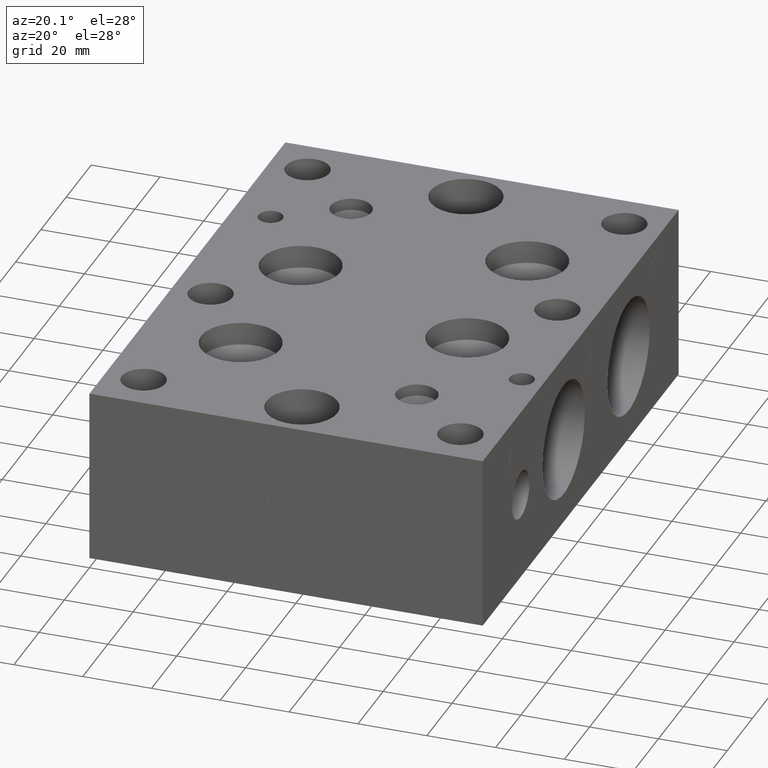
[diagram: clean part render]
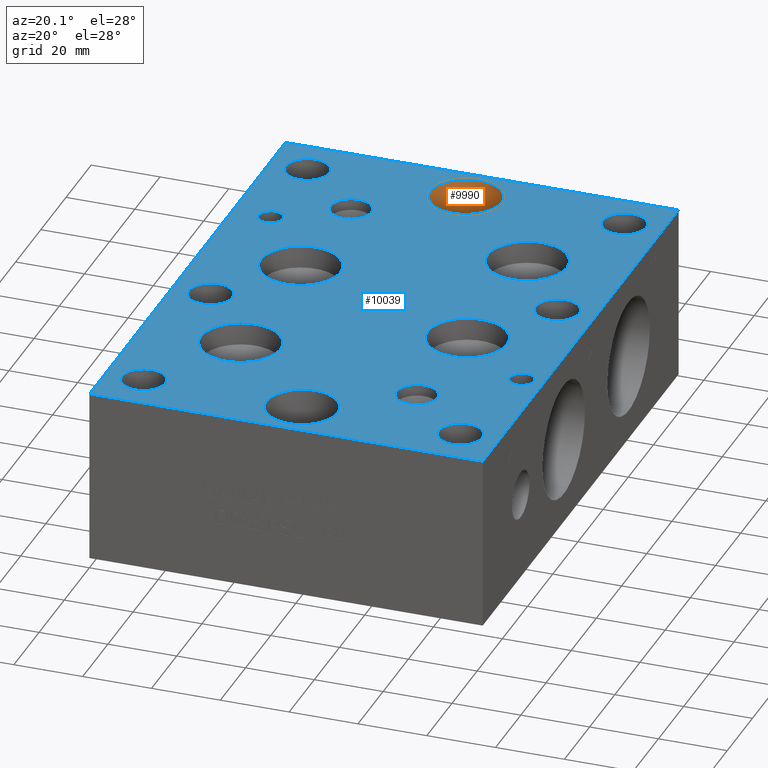
[diagram: same view with the hole feature highlighted: cylindrical wall and planar end face, labeled with their STEP entity ids]
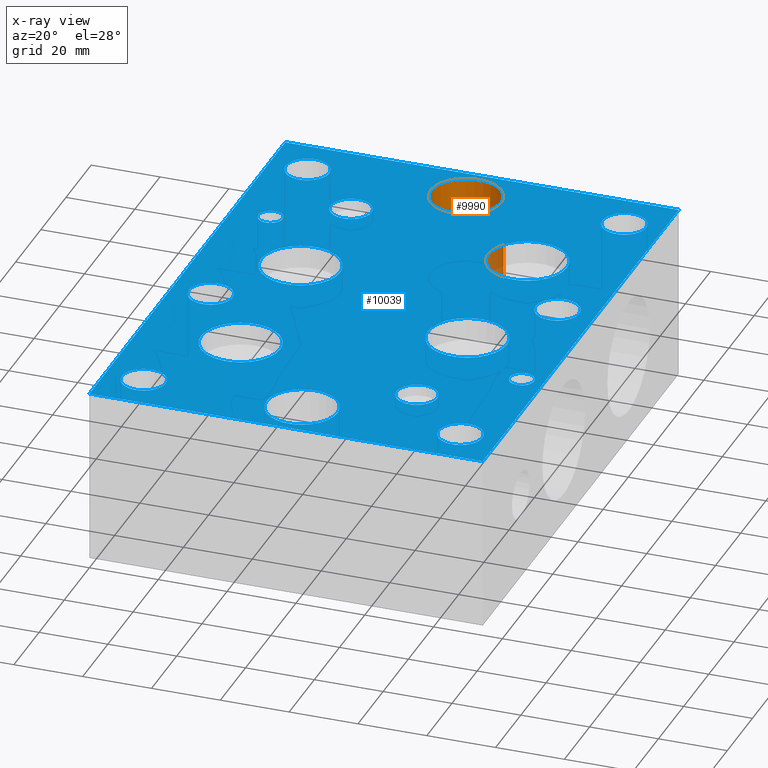
[diagram: x-ray of the same camera — body ghosted, the hole faces saturated]
A machine part, auxiliary view. The highlighted faces form one hole feature of diameter 20.6248 mm: the cylindrical wall (entity #9990, orange) and its adjacent planar end face (entity #10039, blue) — they share a circular edge in the B-rep.
The next image is the same camera in x-ray (body ghosted, the hole faces saturated) — the bore reads through the body.
Wall:
#26=CYLINDRICAL_SURFACE('',#10409,10.3124);
#112=CIRCLE('',#10406,10.3124);
#113=CIRCLE('',#10407,10.3124);
#115=CIRCLE('',#10410,10.3124);
#116=CIRCLE('',#10411,10.3124);
#1041=FACE_OUTER_BOUND('',#1606,.T.);
#1606=EDGE_LOOP('',(#8688,#8689,#8690,#8691,#8692,#8693));
#2590=LINE('',#17000,#3538);
#3538=VECTOR('',#12167,10.3124);
#4724=VERTEX_POINT('',#16989);
#4725=VERTEX_POINT('',#16990);
#4727=VERTEX_POINT('',#16996);
#4728=VERTEX_POINT('',#16997);
#6076=EDGE_CURVE('',#4724,#4725,#112,.T.);
#6077=EDGE_CURVE('',#4725,#4724,#113,.T.);
#6079=EDGE_CURVE('',#4727,#4728,#115,.T.);
#6080=EDGE_CURVE('',#4728,#4727,#116,.T.);
#6081=EDGE_CURVE('',#4728,#4725,#2590,.T.);
#8688=ORIENTED_EDGE('',*,*,#6079,.F.);
#8689=ORIENTED_EDGE('',*,*,#6080,.F.);
#8690=ORIENTED_EDGE('',*,*,#6081,.T.);
#8691=ORIENTED_EDGE('',*,*,#6076,.F.);
#8692=ORIENTED_EDGE('',*,*,#6077,.F.);
#8693=ORIENTED_EDGE('',*,*,#6081,.F.);
#9990=ADVANCED_FACE('',(#1041),#26,.F.);
#10406=AXIS2_PLACEMENT_3D('',#16991,#12155,#12156);
#10407=AXIS2_PLACEMENT_3D('',#16992,#12157,#12158);
#10409=AXIS2_PLACEMENT_3D('',#16995,#12161,#12162);
#10410=AXIS2_PLACEMENT_3D('',#16998,#12163,#12164);
#10411=AXIS2_PLACEMENT_3D('',#16999,#12165,#12166);
#12155=DIRECTION('center_axis',(0.,0.,1.));
#12156=DIRECTION('ref_axis',(1.,0.,0.));
#12157=DIRECTION('center_axis',(0.,0.,1.));
#12158=DIRECTION('ref_axis',(1.,0.,0.));
#12161=DIRECTION('center_axis',(0.,0.,1.));
#12162=DIRECTION('ref_axis',(1.,0.,0.));
#12163=DIRECTION('center_axis',(0.,0.,-1.));
#12164=DIRECTION('ref_axis',(1.,0.,0.));
#12165=DIRECTION('center_axis',(0.,0.,-1.));
#12166=DIRECTION('ref_axis',(1.,0.,0.));
#12167=DIRECTION('',(0.,0.,-1.));
#16989=CARTESIAN_POINT('',(67.4624,142.875,25.4));
#16990=CARTESIAN_POINT('',(46.8376,142.875,25.4));
#16991=CARTESIAN_POINT('Origin',(57.15,142.875,25.4));
#16992=CARTESIAN_POINT('Origin',(57.15,142.875,25.4));
#16995=CARTESIAN_POINT('Origin',(57.15,142.875,38.1));
#16996=CARTESIAN_POINT('',(67.4624,142.875,50.8));
#16997=CARTESIAN_POINT('',(46.8376,142.875,50.8));
#16998=CARTESIAN_POINT('Origin',(57.15,142.875,50.8));
#16999=CARTESIAN_POINT('Origin',(57.15,142.875,50.8));
#17000=CARTESIAN_POINT('',(46.8376,142.875,38.1));
End face:
#115=CIRCLE('',#10410,10.3124);
#116=CIRCLE('',#10411,10.3124);
#121=CIRCLE('',#10419,10.3124);
#122=CIRCLE('',#10420,10.3124);
#126=CIRCLE('',#10427,5.9436);
#127=CIRCLE('',#10428,5.9436);
#130=CIRCLE('',#10433,5.9436);
#131=CIRCLE('',#10434,5.9436);
#134=CIRCLE('',#10439,11.50874);
#135=CIRCLE('',#10440,11.50874);
#138=CIRCLE('',#10445,11.5062);
#139=CIRCLE('',#10446,11.5062);
#142=CIRCLE('',#10451,11.5062);
#143=CIRCLE('',#10452,11.5062);
#146=CIRCLE('',#10457,11.5062);
#147=CIRCLE('',#10458,11.5062);
#150=CIRCLE('',#10463,3.5687);
#151=CIRCLE('',#10464,3.5687);
#154=CIRCLE('',#10469,3.5687);
#155=CIRCLE('',#10470,3.5687);
#161=CIRCLE('',#10479,6.35);
#162=CIRCLE('',#10480,6.35);
#168=CIRCLE('',#10490,6.35);
#169=CIRCLE('',#10491,6.35);
#175=CIRCLE('',#10501,6.35);
#176=CIRCLE('',#10502,6.35);
#182=CIRCLE('',#10512,6.35);
#183=CIRCLE('',#10513,6.35);
#189=CIRCLE('',#10523,6.35);
#190=CIRCLE('',#10524,6.35);
#196=CIRCLE('',#10534,6.35);
#197=CIRCLE('',#10535,6.35);
#259=FACE_BOUND('',#1663,.T.);
#260=FACE_BOUND('',#1664,.T.);
#261=FACE_BOUND('',#1665,.T.);
#262=FACE_BOUND('',#1666,.T.);
#263=FACE_BOUND('',#1667,.T.);
#264=FACE_BOUND('',#1668,.T.);
#265=FACE_BOUND('',#1669,.T.);
#266=FACE_BOUND('',#1670,.T.);
#267=FACE_BOUND('',#1671,.T.);
#268=FACE_BOUND('',#1672,.T.);
#269=FACE_BOUND('',#1673,.T.);
#270=FACE_BOUND('',#1674,.T.);
#271=FACE_BOUND('',#1675,.T.);
#272=FACE_BOUND('',#1676,.T.);
#273=FACE_BOUND('',#1677,.T.);
#274=FACE_BOUND('',#1678,.T.);
#579=PLANE('',#10541);
#1090=FACE_OUTER_BOUND('',#1662,.T.);
#1662=EDGE_LOOP('',(#8916,#8917,#8918,#8919));
#1663=EDGE_LOOP('',(#8920,#8921));
#1664=EDGE_LOOP('',(#8922,#8923));
#1665=EDGE_LOOP('',(#8924,#8925));
#1666=EDGE_LOOP('',(#8926,#8927));
#1667=EDGE_LOOP('',(#8928,#8929));
#1668=EDGE_LOOP('',(#8930,#8931));
#1669=EDGE_LOOP('',(#8932,#8933));
#1670=EDGE_LOOP('',(#8934,#8935));
#1671=EDGE_LOOP('',(#8936,#8937));
#1672=EDGE_LOOP('',(#8938,#8939));
#1673=EDGE_LOOP('',(#8940,#8941));
#1674=EDGE_LOOP('',(#8942,#8943));
#1675=EDGE_LOOP('',(#8944,#8945));
#1676=EDGE_LOOP('',(#8946,#8947));
#1677=EDGE_LOOP('',(#8948,#8949));
#1678=EDGE_LOOP('',(#8950,#8951));
#1991=LINE('',#15159,#2939);
#2431=LINE('',#16331,#3379);
#2501=LINE('',#16724,#3449);
#2629=LINE('',#17261,#3577);
#2939=VECTOR('',#11002,10.);
#3379=VECTOR('',#11766,10.);
#3449=VECTOR('',#11890,10.);
#3577=VECTOR('',#12460,10.);
#4248=VERTEX_POINT('',#15156);
#4249=VERTEX_POINT('',#15158);
#4563=VERTEX_POINT('',#16329);
#4635=VERTEX_POINT('',#16723);
#4727=VERTEX_POINT('',#16996);
#4728=VERTEX_POINT('',#16997);
#4733=VERTEX_POINT('',#17013);
#4734=VERTEX_POINT('',#17014);
#4739=VERTEX_POINT('',#17030);
#4740=VERTEX_POINT('',#17031);
#4744=VERTEX_POINT('',#17043);
#4745=VERTEX_POINT('',#17044);
#4749=VERTEX_POINT('',#17056);
#4750=VERTEX_POINT('',#17057);
#4754=VERTEX_POINT('',#17069);
#4755=VERTEX_POINT('',#17070);
#4759=VERTEX_POINT('',#17082);
#4760=VERTEX_POINT('',#17083);
#4764=VERTEX_POINT('',#17095);
#4765=VERTEX_POINT('',#17096);
#4769=VERTEX_POINT('',#17108);
#4770=VERTEX_POINT('',#17109);
#4774=VERTEX_POINT('',#17121);
#4775=VERTEX_POINT('',#17122);
#4782=VERTEX_POINT('',#17141);
#4783=VERTEX_POINT('',#17142);
#4790=VERTEX_POINT('',#17163);
#4791=VERTEX_POINT('',#17164);
#4798=VERTEX_POINT('',#17185);
#4799=VERTEX_POINT('',#17186);
#4806=VERTEX_POINT('',#17207);
#4807=VERTEX_POINT('',#17208);
#4814=VERTEX_POINT('',#17229);
#4815=VERTEX_POINT('',#17230);
#4822=VERTEX_POINT('',#17251);
#4823=VERTEX_POINT('',#17252);
#5375=EDGE_CURVE('',#4249,#4248,#1991,.T.);
#5847=EDGE_CURVE('',#4248,#4563,#2431,.T.);
#5951=EDGE_CURVE('',#4635,#4249,#2501,.T.);
#6079=EDGE_CURVE('',#4727,#4728,#115,.T.);
#6080=EDGE_CURVE('',#4728,#4727,#116,.T.);
#6087=EDGE_CURVE('',#4733,#4734,#121,.T.);
#6088=EDGE_CURVE('',#4734,#4733,#122,.T.);
#6095=EDGE_CURVE('',#4739,#4740,#126,.T.);
#6096=EDGE_CURVE('',#4740,#4739,#127,.T.);
#6101=EDGE_CURVE('',#4744,#4745,#130,.T.);
#6102=EDGE_CURVE('',#4745,#4744,#131,.T.);
#6107=EDGE_CURVE('',#4749,#4750,#134,.T.);
#6108=EDGE_CURVE('',#4750,#4749,#135,.T.);
#6113=EDGE_CURVE('',#4754,#4755,#138,.T.);
#6114=EDGE_CURVE('',#4755,#4754,#139,.T.);
#6119=EDGE_CURVE('',#4759,#4760,#142,.T.);
#6120=EDGE_CURVE('',#4760,#4759,#143,.T.);
#6125=EDGE_CURVE('',#4764,#4765,#146,.T.);
#6126=EDGE_CURVE('',#4765,#4764,#147,.T.);
#6131=EDGE_CURVE('',#4769,#4770,#150,.T.);
#6132=EDGE_CURVE('',#4770,#4769,#151,.T.);
#6137=EDGE_CURVE('',#4774,#4775,#154,.T.);
#6138=EDGE_CURVE('',#4775,#4774,#155,.T.);
#6146=EDGE_CURVE('',#4782,#4783,#161,.T.);
#6147=EDGE_CURVE('',#4783,#4782,#162,.T.);
#6156=EDGE_CURVE('',#4790,#4791,#168,.T.);
#6157=EDGE_CURVE('',#4791,#4790,#169,.T.);
#6166=EDGE_CURVE('',#4798,#4799,#175,.T.);
#6167=EDGE_CURVE('',#4799,#4798,#176,.T.);
#6176=EDGE_CURVE('',#4806,#4807,#182,.T.);
#6177=EDGE_CURVE('',#4807,#4806,#183,.T.);
#6186=EDGE_CURVE('',#4814,#4815,#189,.T.);
#6187=EDGE_CURVE('',#4815,#4814,#190,.T.);
#6196=EDGE_CURVE('',#4822,#4823,#196,.T.);
#6197=EDGE_CURVE('',#4823,#4822,#197,.T.);
#6201=EDGE_CURVE('',#4563,#4635,#2629,.T.);
#8916=ORIENTED_EDGE('',*,*,#5375,.T.);
#8917=ORIENTED_EDGE('',*,*,#5847,.T.);
#8918=ORIENTED_EDGE('',*,*,#6201,.T.);
#8919=ORIENTED_EDGE('',*,*,#5951,.T.);
#8920=ORIENTED_EDGE('',*,*,#6079,.T.);
#8921=ORIENTED_EDGE('',*,*,#6080,.T.);
#8922=ORIENTED_EDGE('',*,*,#6087,.T.);
#8923=ORIENTED_EDGE('',*,*,#6088,.T.);
#8924=ORIENTED_EDGE('',*,*,#6095,.T.);
#8925=ORIENTED_EDGE('',*,*,#6096,.T.);
#8926=ORIENTED_EDGE('',*,*,#6101,.T.);
#8927=ORIENTED_EDGE('',*,*,#6102,.T.);
#8928=ORIENTED_EDGE('',*,*,#6107,.T.);
#8929=ORIENTED_EDGE('',*,*,#6108,.T.);
#8930=ORIENTED_EDGE('',*,*,#6113,.T.);
#8931=ORIENTED_EDGE('',*,*,#6114,.T.);
#8932=ORIENTED_EDGE('',*,*,#6119,.T.);
#8933=ORIENTED_EDGE('',*,*,#6120,.T.);
#8934=ORIENTED_EDGE('',*,*,#6125,.T.);
#8935=ORIENTED_EDGE('',*,*,#6126,.T.);
#8936=ORIENTED_EDGE('',*,*,#6131,.T.);
#8937=ORIENTED_EDGE('',*,*,#6132,.T.);
#8938=ORIENTED_EDGE('',*,*,#6137,.T.);
#8939=ORIENTED_EDGE('',*,*,#6138,.T.);
#8940=ORIENTED_EDGE('',*,*,#6146,.T.);
#8941=ORIENTED_EDGE('',*,*,#6147,.T.);
#8942=ORIENTED_EDGE('',*,*,#6156,.T.);
#8943=ORIENTED_EDGE('',*,*,#6157,.T.);
#8944=ORIENTED_EDGE('',*,*,#6166,.T.);
#8945=ORIENTED_EDGE('',*,*,#6167,.T.);
#8946=ORIENTED_EDGE('',*,*,#6176,.T.);
#8947=ORIENTED_EDGE('',*,*,#6177,.T.);
#8948=ORIENTED_EDGE('',*,*,#6186,.T.);
#8949=ORIENTED_EDGE('',*,*,#6187,.T.);
#8950=ORIENTED_EDGE('',*,*,#6196,.T.);
#8951=ORIENTED_EDGE('',*,*,#6197,.T.);
#10039=ADVANCED_FACE('',(#1090,#259,#260,#261,#262,#263,#264,#265,#266,
#267,#268,#269,#270,#271,#272,#273,#274),#579,.T.);
#10410=AXIS2_PLACEMENT_3D('',#16998,#12163,#12164);
#10411=AXIS2_PLACEMENT_3D('',#16999,#12165,#12166);
#10419=AXIS2_PLACEMENT_3D('',#17015,#12183,#12184);
#10420=AXIS2_PLACEMENT_3D('',#17016,#12185,#12186);
#10427=AXIS2_PLACEMENT_3D('',#17032,#12202,#12203);
#10428=AXIS2_PLACEMENT_3D('',#17033,#12204,#12205);
#10433=AXIS2_PLACEMENT_3D('',#17045,#12216,#12217);
#10434=AXIS2_PLACEMENT_3D('',#17046,#12218,#12219);
#10439=AXIS2_PLACEMENT_3D('',#17058,#12230,#12231);
#10440=AXIS2_PLACEMENT_3D('',#17059,#12232,#12233);
#10445=AXIS2_PLACEMENT_3D('',#17071,#12244,#12245);
#10446=AXIS2_PLACEMENT_3D('',#17072,#12246,#12247);
#10451=AXIS2_PLACEMENT_3D('',#17084,#12258,#12259);
#10452=AXIS2_PLACEMENT_3D('',#17085,#12260,#12261);
#10457=AXIS2_PLACEMENT_3D('',#17097,#12272,#12273);
#10458=AXIS2_PLACEMENT_3D('',#17098,#12274,#12275);
#10463=AXIS2_PLACEMENT_3D('',#17110,#12286,#12287);
#10464=AXIS2_PLACEMENT_3D('',#17111,#12288,#12289);
#10469=AXIS2_PLACEMENT_3D('',#17123,#12300,#12301);
#10470=AXIS2_PLACEMENT_3D('',#17124,#12302,#12303);
#10479=AXIS2_PLACEMENT_3D('',#17143,#12322,#12323);
#10480=AXIS2_PLACEMENT_3D('',#17144,#12324,#12325);
#10490=AXIS2_PLACEMENT_3D('',#17165,#12347,#12348);
#10491=AXIS2_PLACEMENT_3D('',#17166,#12349,#12350);
#10501=AXIS2_PLACEMENT_3D('',#17187,#12372,#12373);
#10502=AXIS2_PLACEMENT_3D('',#17188,#12374,#12375);
#10512=AXIS2_PLACEMENT_3D('',#17209,#12397,#12398);
#10513=AXIS2_PLACEMENT_3D('',#17210,#12399,#12400);
#10523=AXIS2_PLACEMENT_3D('',#17231,#12422,#12423);
#10524=AXIS2_PLACEMENT_3D('',#17232,#12424,#12425);
#10534=AXIS2_PLACEMENT_3D('',#17253,#12447,#12448);
#10535=AXIS2_PLACEMENT_3D('',#17254,#12449,#12450);
#10541=AXIS2_PLACEMENT_3D('',#17264,#12465,#12466);
#11002=DIRECTION('',(1.,0.,0.));
#11766=DIRECTION('',(0.,1.,0.));
#11890=DIRECTION('',(0.,-1.,0.));
#12163=DIRECTION('center_axis',(0.,0.,-1.));
#12164=DIRECTION('ref_axis',(1.,0.,0.));
#12165=DIRECTION('center_axis',(0.,0.,-1.));
#12166=DIRECTION('ref_axis',(1.,0.,0.));
#12183=DIRECTION('center_axis',(0.,0.,-1.));
#12184=DIRECTION('ref_axis',(1.,0.,0.));
#12185=DIRECTION('center_axis',(0.,0.,-1.));
#12186=DIRECTION('ref_axis',(1.,0.,0.));
#12202=DIRECTION('center_axis',(0.,0.,-1.));
#12203=DIRECTION('ref_axis',(1.,0.,0.));
#12204=DIRECTION('center_axis',(0.,0.,-1.));
#12205=DIRECTION('ref_axis',(1.,0.,0.));
#12216=DIRECTION('center_axis',(0.,0.,-1.));
#12217=DIRECTION('ref_axis',(1.,0.,0.));
#12218=DIRECTION('center_axis',(0.,0.,-1.));
#12219=DIRECTION('ref_axis',(1.,0.,0.));
#12230=DIRECTION('center_axis',(0.,0.,-1.));
#12231=DIRECTION('ref_axis',(1.,0.,0.));
#12232=DIRECTION('center_axis',(0.,0.,-1.));
#12233=DIRECTION('ref_axis',(1.,0.,0.));
#12244=DIRECTION('center_axis',(0.,0.,-1.));
#12245=DIRECTION('ref_axis',(1.,0.,0.));
#12246=DIRECTION('center_axis',(0.,0.,-1.));
#12247=DIRECTION('ref_axis',(1.,0.,0.));
#12258=DIRECTION('center_axis',(0.,0.,-1.));
#12259=DIRECTION('ref_axis',(1.,0.,0.));
#12260=DIRECTION('center_axis',(0.,0.,-1.));
#12261=DIRECTION('ref_axis',(1.,0.,0.));
#12272=DIRECTION('center_axis',(0.,0.,-1.));
#12273=DIRECTION('ref_axis',(1.,0.,0.));
#12274=DIRECTION('center_axis',(0.,0.,-1.));
#12275=DIRECTION('ref_axis',(1.,0.,0.));
#12286=DIRECTION('center_axis',(0.,0.,-1.));
#12287=DIRECTION('ref_axis',(1.,0.,0.));
#12288=DIRECTION('center_axis',(0.,0.,-1.));
#12289=DIRECTION('ref_axis',(1.,0.,0.));
#12300=DIRECTION('center_axis',(0.,0.,-1.));
#12301=DIRECTION('ref_axis',(1.,0.,0.));
#12302=DIRECTION('center_axis',(0.,0.,-1.));
#12303=DIRECTION('ref_axis',(1.,0.,0.));
#12322=DIRECTION('center_axis',(0.,0.,-1.));
#12323=DIRECTION('ref_axis',(1.,0.,0.));
#12324=DIRECTION('center_axis',(0.,0.,-1.));
#12325=DIRECTION('ref_axis',(1.,0.,0.));
#12347=DIRECTION('center_axis',(0.,0.,-1.));
#12348=DIRECTION('ref_axis',(1.,0.,0.));
#12349=DIRECTION('center_axis',(0.,0.,-1.));
#12350=DIRECTION('ref_axis',(1.,0.,0.));
#12372=DIRECTION('center_axis',(0.,0.,-1.));
#12373=DIRECTION('ref_axis',(1.,0.,0.));
#12374=DIRECTION('center_axis',(0.,0.,-1.));
#12375=DIRECTION('ref_axis',(1.,0.,0.));
#12397=DIRECTION('center_axis',(0.,0.,-1.));
#12398=DIRECTION('ref_axis',(1.,0.,0.));
#12399=DIRECTION('center_axis',(0.,0.,-1.));
#12400=DIRECTION('ref_axis',(1.,0.,0.));
#12422=DIRECTION('center_axis',(0.,0.,-1.));
#12423=DIRECTION('ref_axis',(1.,0.,0.));
#12424=DIRECTION('center_axis',(0.,0.,-1.));
#12425=DIRECTION('ref_axis',(1.,0.,0.));
#12447=DIRECTION('center_axis',(0.,0.,-1.));
#12448=DIRECTION('ref_axis',(1.,0.,0.));
#12449=DIRECTION('center_axis',(0.,0.,-1.));
#12450=DIRECTION('ref_axis',(1.,0.,0.));
#12460=DIRECTION('',(-1.,0.,0.));
#12465=DIRECTION('center_axis',(0.,0.,1.));
#12466=DIRECTION('ref_axis',(1.,0.,0.));
#15156=CARTESIAN_POINT('',(114.3,0.,50.8));
#15158=CARTESIAN_POINT('',(0.,0.,50.8));
#15159=CARTESIAN_POINT('',(0.,0.,50.8));
#16329=CARTESIAN_POINT('',(114.3,155.575,50.8));
#16331=CARTESIAN_POINT('',(114.3,0.,50.8));
#16723=CARTESIAN_POINT('',(0.,155.575,50.8));
#16724=CARTESIAN_POINT('',(0.,155.575,50.8));
#16996=CARTESIAN_POINT('',(67.4624,142.875,50.8));
#16997=CARTESIAN_POINT('',(46.8376,142.875,50.8));
#16998=CARTESIAN_POINT('Origin',(57.15,142.875,50.8));
#16999=CARTESIAN_POINT('Origin',(57.15,142.875,50.8));
#17013=CARTESIAN_POINT('',(67.4624,12.7,50.8));
#17014=CARTESIAN_POINT('',(46.8376,12.7,50.8));
#17015=CARTESIAN_POINT('Origin',(57.15,12.7,50.8));
#17016=CARTESIAN_POINT('Origin',(57.15,12.7,50.8));
#17030=CARTESIAN_POINT('',(36.1061,125.42012,50.8));
#17031=CARTESIAN_POINT('',(24.2189,125.42012,50.8));
#17032=CARTESIAN_POINT('Origin',(30.1625,125.42012,50.8));
#17033=CARTESIAN_POINT('Origin',(30.1625,125.42012,50.8));
#17043=CARTESIAN_POINT('',(90.0811,30.17012,50.8));
#17044=CARTESIAN_POINT('',(78.1939,30.17012,50.8));
#17045=CARTESIAN_POINT('Origin',(84.1375,30.17012,50.8));
#17046=CARTESIAN_POINT('Origin',(84.1375,30.17012,50.8));
#17056=CARTESIAN_POINT('',(97.23374,113.5126,50.8));
#17057=CARTESIAN_POINT('',(74.21626,113.5126,50.8));
#17058=CARTESIAN_POINT('Origin',(85.725,113.5126,50.8));
#17059=CARTESIAN_POINT('Origin',(85.725,113.5126,50.8));
#17069=CARTESIAN_POINT('',(40.0812,89.7128,50.8));
#17070=CARTESIAN_POINT('',(17.0688,89.7128,50.8));
#17071=CARTESIAN_POINT('Origin',(28.575,89.7128,50.8));
#17072=CARTESIAN_POINT('Origin',(28.575,89.7128,50.8));
#17082=CARTESIAN_POINT('',(97.2312,65.8876,50.8));
#17083=CARTESIAN_POINT('',(74.2188,65.8876,50.8));
#17084=CARTESIAN_POINT('Origin',(85.725,65.8876,50.8));
#17085=CARTESIAN_POINT('Origin',(85.725,65.8876,50.8));
#17095=CARTESIAN_POINT('',(40.0812,42.0624,50.8));
#17096=CARTESIAN_POINT('',(17.0688,42.0624,50.8));
#17097=CARTESIAN_POINT('Origin',(28.575,42.0624,50.8));
#17098=CARTESIAN_POINT('Origin',(28.575,42.0624,50.8));
#17108=CARTESIAN_POINT('',(14.6685,113.5126,50.8));
#17109=CARTESIAN_POINT('',(7.5311,113.5126,50.8));
#17110=CARTESIAN_POINT('Origin',(11.0998,113.5126,50.8));
#17111=CARTESIAN_POINT('Origin',(11.0998,113.5126,50.8));
#17121=CARTESIAN_POINT('',(111.5187,48.4378,50.8));
#17122=CARTESIAN_POINT('',(104.3813,48.4378,50.8));
#17123=CARTESIAN_POINT('Origin',(107.95,48.4378,50.8));
#17124=CARTESIAN_POINT('Origin',(107.95,48.4378,50.8));
#17141=CARTESIAN_POINT('',(17.4625,12.70762,50.8));
#17142=CARTESIAN_POINT('',(4.7625,12.70762,50.8));
#17143=CARTESIAN_POINT('Origin',(11.1125,12.70762,50.8));
#17144=CARTESIAN_POINT('Origin',(11.1125,12.70762,50.8));
#17163=CARTESIAN_POINT('',(109.5502,89.7001,50.8));
#17164=CARTESIAN_POINT('',(96.8502,89.7001,50.8));
#17165=CARTESIAN_POINT('Origin',(103.2002,89.7001,50.8));
#17166=CARTESIAN_POINT('Origin',(103.2002,89.7001,50.8));
#17185=CARTESIAN_POINT('',(17.4498,142.875,50.8));
#17186=CARTESIAN_POINT('',(4.7498,142.875,50.8));
#17187=CARTESIAN_POINT('Origin',(11.0998,142.875,50.8));
#17188=CARTESIAN_POINT('Origin',(11.0998,142.875,50.8));
#17207=CARTESIAN_POINT('',(109.5375,142.88008,50.8));
#17208=CARTESIAN_POINT('',(96.8375,142.88008,50.8));
#17209=CARTESIAN_POINT('Origin',(103.1875,142.88008,50.8));
#17210=CARTESIAN_POINT('Origin',(103.1875,142.88008,50.8));
#17229=CARTESIAN_POINT('',(109.5375,12.70762,50.8));
#17230=CARTESIAN_POINT('',(96.8375,12.70762,50.8));
#17231=CARTESIAN_POINT('Origin',(103.1875,12.70762,50.8));
#17232=CARTESIAN_POINT('Origin',(103.1875,12.70762,50.8));
#17251=CARTESIAN_POINT('',(17.4752,65.8876,50.8));
#17252=CARTESIAN_POINT('',(4.7752,65.8876,50.8));
#17253=CARTESIAN_POINT('Origin',(11.1252,65.8876,50.8));
#17254=CARTESIAN_POINT('Origin',(11.1252,65.8876,50.8));
#17261=CARTESIAN_POINT('',(114.3,155.575,50.8));
#17264=CARTESIAN_POINT('Origin',(57.15,77.7875,50.8));